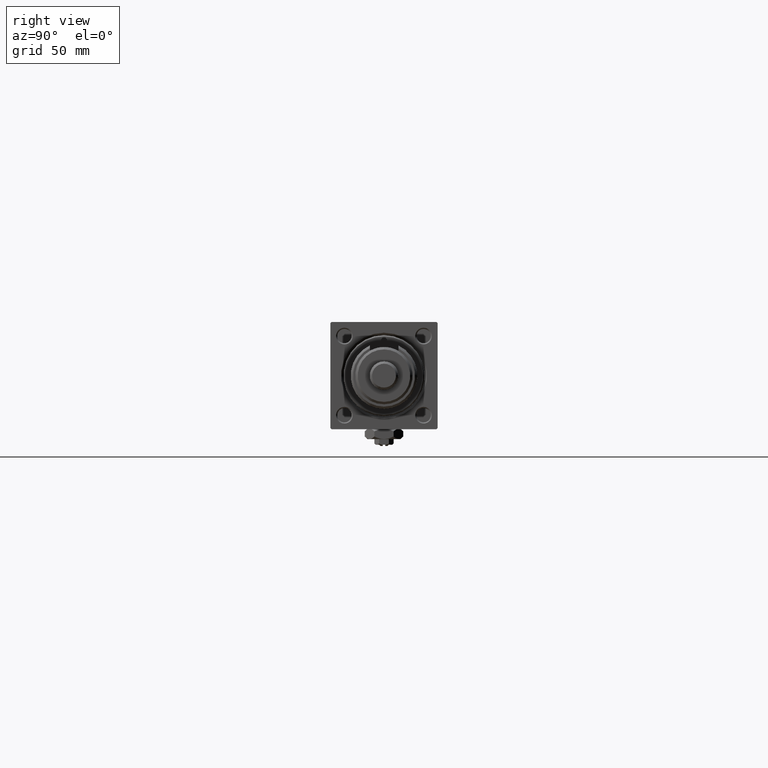
[diagram: clean part render]
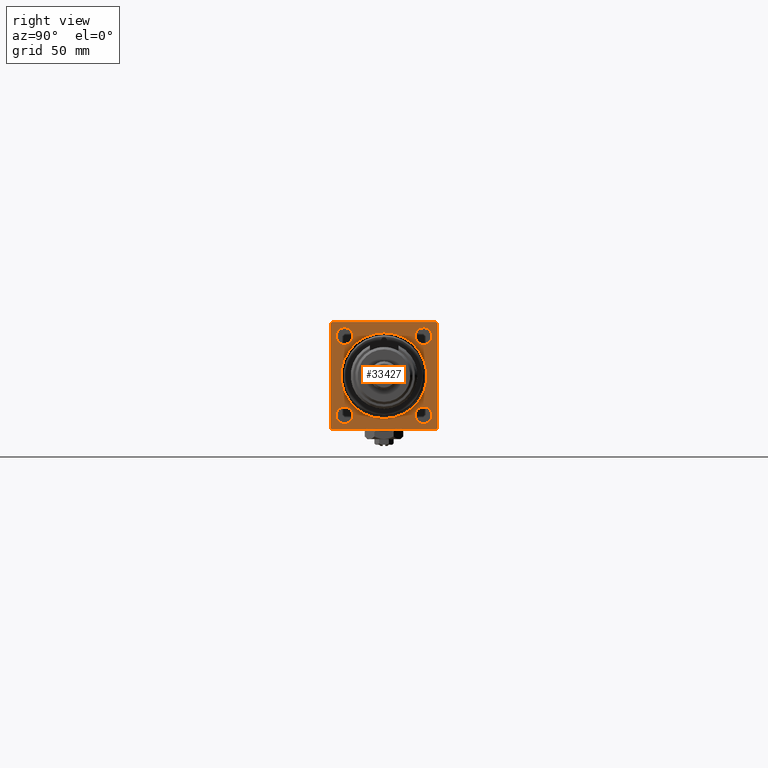
[diagram: same view with one face highlighted and labeled with its STEP entity id]
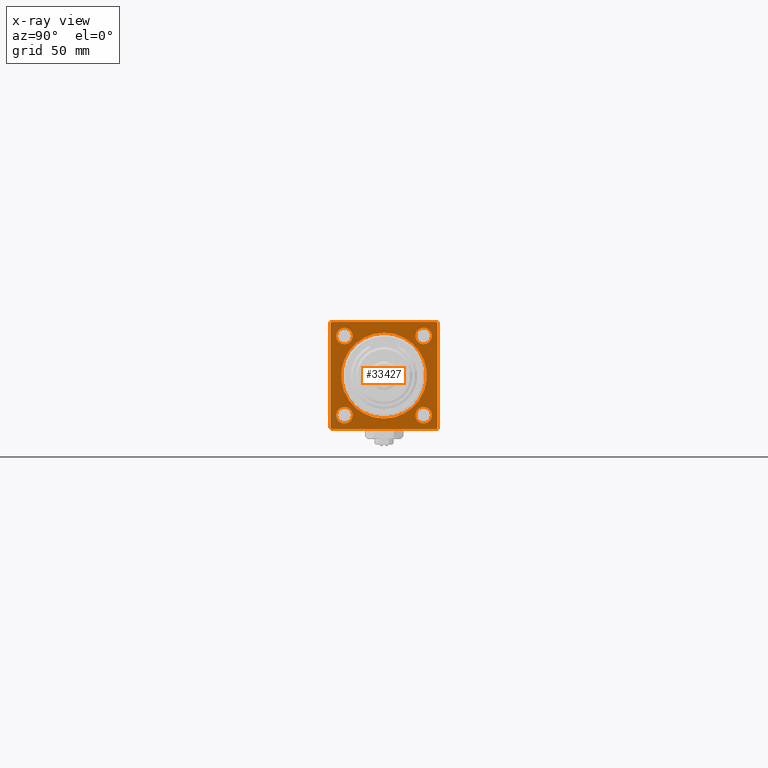
[diagram: x-ray of the same camera — body ghosted, the highlighted face saturated]
A machine part, right view. The second image highlights one B-rep face of the part: STEP entity #33427.
The next image is the same camera in x-ray: the body ghosted, the highlighted face saturated — about 0% of this face is hidden behind the body in this view.
In plain terms, the highlighted planar face has unit normal (-1, 0, 0).
Its self-contained STEP definition (entity closure, byte-faithful):
#32 = FACE_BOUND ( 'NONE', #52836, .T. ) ;
#244 = DIRECTION ( 'NONE',  ( 0.000000000000000000, 0.000000000000000000, 1.000000000000000000 ) ) ;
#536 = ORIENTED_EDGE ( 'NONE', *, *, #18818, .F. ) ;
#588 = EDGE_CURVE ( 'NONE', #1087, #30330, #25429, .T. ) ;
#929 = DIRECTION ( 'NONE',  ( -1.000000000000000000, 0.000000000000000000, -0.000000000000000000 ) ) ;
#1087 = VERTEX_POINT ( 'NONE', #15531 ) ;
#1211 = DIRECTION ( 'NONE',  ( -1.000000000000000000, 0.000000000000000000, -0.000000000000000000 ) ) ;
#2204 = CIRCLE ( 'NONE', #13790, 3.500000000000003109 ) ;
#2228 = DIRECTION ( 'NONE',  ( 0.000000000000000000, 0.000000000000000000, 1.000000000000000000 ) ) ;
#2502 = VECTOR ( 'NONE', #46861, 1000.000000000000000 ) ;
#2720 = ORIENTED_EDGE ( 'NONE', *, *, #34140, .T. ) ;
#2809 = EDGE_CURVE ( 'NONE', #55098, #14936, #36609, .T. ) ;
#3008 = VERTEX_POINT ( 'NONE', #4896 ) ;
#3711 = CIRCLE ( 'NONE', #21520, 17.99999999999998934 ) ;
#3977 = EDGE_LOOP ( 'NONE', ( #54972, #21694 ) ) ;
#4224 = CARTESIAN_POINT ( 'NONE',  ( 203.0000000000000000, 0.000000000000000000, 0.000000000000000000 ) ) ;
#4543 = AXIS2_PLACEMENT_3D ( 'NONE', #21865, #929, #18489 ) ;
#4786 = ORIENTED_EDGE ( 'NONE', *, *, #40006, .T. ) ;
#4896 = CARTESIAN_POINT ( 'NONE',  ( 203.0000000000000000, -16.60000000000000497, -20.10000000000000853 ) ) ;
#5281 = EDGE_LOOP ( 'NONE', ( #20588, #38647 ) ) ;
#5312 = PLANE ( 'NONE',  #6018 ) ;
#5344 = CARTESIAN_POINT ( 'NONE',  ( 203.0000000000000000, -16.60000000000000497, -16.60000000000000497 ) ) ;
#6018 = AXIS2_PLACEMENT_3D ( 'NONE', #4224, #26523, #43515 ) ;
#6551 = DIRECTION ( 'NONE',  ( 0.000000000000000000, -0.7071067811865474617, 0.7071067811865474617 ) ) ;
#7129 = ORIENTED_EDGE ( 'NONE', *, *, #46877, .F. ) ;
#7187 = VERTEX_POINT ( 'NONE', #53770 ) ;
#7711 = CIRCLE ( 'NONE', #19262, 3.500000000000003109 ) ;
#9224 = FACE_BOUND ( 'NONE', #25414, .T. ) ;
#9262 = VERTEX_POINT ( 'NONE', #51112 ) ;
#9483 = FACE_BOUND ( 'NONE', #5281, .T. ) ;
#9903 = CARTESIAN_POINT ( 'NONE',  ( 203.0000000000000000, 22.00000000000000355, 22.50000000000000355 ) ) ;
#10967 = DIRECTION ( 'NONE',  ( 0.000000000000000000, 0.000000000000000000, 1.000000000000000000 ) ) ;
#11263 = AXIS2_PLACEMENT_3D ( 'NONE', #36263, #44075, #2228 ) ;
#11279 = DIRECTION ( 'NONE',  ( 0.000000000000000000, 0.000000000000000000, -1.000000000000000000 ) ) ;
#11350 = VERTEX_POINT ( 'NONE', #22747 ) ;
#11665 = ORIENTED_EDGE ( 'NONE', *, *, #588, .T. ) ;
#12094 = LINE ( 'NONE', #44761, #37359 ) ;
#12566 = AXIS2_PLACEMENT_3D ( 'NONE', #34319, #46343, #33502 ) ;
#12576 = EDGE_CURVE ( 'NONE', #46656, #3008, #2204, .T. ) ;
#13015 = LINE ( 'NONE', #44797, #24757 ) ;
#13074 = VECTOR ( 'NONE', #11279, 1000.000000000000000 ) ;
#13790 = AXIS2_PLACEMENT_3D ( 'NONE', #30525, #1211, #18776 ) ;
#14936 = VERTEX_POINT ( 'NONE', #43041 ) ;
#14953 = EDGE_CURVE ( 'NONE', #49607, #55086, #7711, .T. ) ;
#15207 = CIRCLE ( 'NONE', #30355, 17.99999999999998934 ) ;
#15249 = ORIENTED_EDGE ( 'NONE', *, *, #52200, .T. ) ;
#15531 = CARTESIAN_POINT ( 'NONE',  ( 203.0000000000000000, -22.49999999999999645, -21.99999999999995026 ) ) ;
#15742 = LINE ( 'NONE', #45031, #26513 ) ;
#15873 = VECTOR ( 'NONE', #21280, 1000.000000000000000 ) ;
#15956 = CIRCLE ( 'NONE', #42659, 3.499999999999975131 ) ;
#15977 = VERTEX_POINT ( 'NONE', #28536 ) ;
#17530 = CIRCLE ( 'NONE', #11263, 3.500000000000003109 ) ;
#17604 = FACE_BOUND ( 'NONE', #3977, .T. ) ;
#17795 = VERTEX_POINT ( 'NONE', #50951 ) ;
#18057 = EDGE_CURVE ( 'NONE', #11350, #9262, #15742, .T. ) ;
#18489 = DIRECTION ( 'NONE',  ( 0.000000000000000000, 0.000000000000000000, 1.000000000000000000 ) ) ;
#18776 = DIRECTION ( 'NONE',  ( 0.000000000000000000, 0.000000000000000000, 1.000000000000000000 ) ) ;
#18818 = EDGE_CURVE ( 'NONE', #15977, #9262, #19678, .T. ) ;
#18871 = DIRECTION ( 'NONE',  ( 0.000000000000000000, -1.000000000000000000, -2.312964634635742957E-16 ) ) ;
#19008 = CARTESIAN_POINT ( 'NONE',  ( 203.0000000000000000, -16.60000000000000497, -13.10000000000000142 ) ) ;
#19262 = AXIS2_PLACEMENT_3D ( 'NONE', #44699, #31601, #48603 ) ;
#19678 = LINE ( 'NONE', #53705, #13074 ) ;
#19684 = DIRECTION ( 'NONE',  ( 0.000000000000000000, 0.000000000000000000, 1.000000000000000000 ) ) ;
#19779 = CIRCLE ( 'NONE', #21448, 3.500000000000003109 ) ;
#20292 = ORIENTED_EDGE ( 'NONE', *, *, #53635, .T. ) ;
#20588 = ORIENTED_EDGE ( 'NONE', *, *, #52897, .T. ) ;
#21280 = DIRECTION ( 'NONE',  ( 0.000000000000000000, 0.000000000000000000, -1.000000000000000000 ) ) ;
#21448 = AXIS2_PLACEMENT_3D ( 'NONE', #5344, #39100, #38829 ) ;
#21520 = AXIS2_PLACEMENT_3D ( 'NONE', #36690, #49506, #19684 ) ;
#21694 = ORIENTED_EDGE ( 'NONE', *, *, #2809, .T. ) ;
#21865 = CARTESIAN_POINT ( 'NONE',  ( 203.0000000000000000, 16.59999999999999787, -16.60000000000000497 ) ) ;
#22286 = VECTOR ( 'NONE', #38247, 1000.000000000000000 ) ;
#22747 = CARTESIAN_POINT ( 'NONE',  ( 203.0000000000000000, 22.00000000000000355, -22.49999999999999645 ) ) ;
#22785 = ORIENTED_EDGE ( 'NONE', *, *, #30269, .T. ) ;
#23120 = ORIENTED_EDGE ( 'NONE', *, *, #35624, .T. ) ;
#23197 = CARTESIAN_POINT ( 'NONE',  ( 203.0000000000000000, -21.99999999999995381, -22.50000000000000000 ) ) ;
#23261 = EDGE_LOOP ( 'NONE', ( #22785, #28785 ) ) ;
#23688 = DIRECTION ( 'NONE',  ( -0.000000000000000000, -0.7071067811865474617, -0.7071067811865474617 ) ) ;
#23793 = EDGE_CURVE ( 'NONE', #14936, #55098, #15956, .T. ) ;
#24757 = VECTOR ( 'NONE', #18871, 1000.000000000000000 ) ;
#25414 = EDGE_LOOP ( 'NONE', ( #4786, #27270 ) ) ;
#25429 = LINE ( 'NONE', #42408, #22286 ) ;
#26513 = VECTOR ( 'NONE', #28593, 1000.000000000000114 ) ;
#26523 = DIRECTION ( 'NONE',  ( -1.000000000000000000, 0.000000000000000000, -0.000000000000000000 ) ) ;
#26922 = DIRECTION ( 'NONE',  ( -1.000000000000000000, 0.000000000000000000, -0.000000000000000000 ) ) ;
#27270 = ORIENTED_EDGE ( 'NONE', *, *, #42135, .T. ) ;
#27880 = CARTESIAN_POINT ( 'NONE',  ( 203.0000000000000000, -22.49999999999999645, 21.99999999999999289 ) ) ;
#28067 = VERTEX_POINT ( 'NONE', #32114 ) ;
#28536 = CARTESIAN_POINT ( 'NONE',  ( 203.0000000000000000, 22.50000000000000355, 22.00000000000000355 ) ) ;
#28593 = DIRECTION ( 'NONE',  ( -0.000000000000000000, 0.7071067811865474617, 0.7071067811865474617 ) ) ;
#28785 = ORIENTED_EDGE ( 'NONE', *, *, #12576, .T. ) ;
#29190 = CARTESIAN_POINT ( 'NONE',  ( 203.0000000000000000, -22.49999999999999645, 21.99999999999999289 ) ) ;
#30269 = EDGE_CURVE ( 'NONE', #3008, #46656, #19779, .T. ) ;
#30330 = VERTEX_POINT ( 'NONE', #23197 ) ;
#30355 = AXIS2_PLACEMENT_3D ( 'NONE', #51558, #46830, #244 ) ;
#30525 = CARTESIAN_POINT ( 'NONE',  ( 203.0000000000000000, -16.60000000000000497, -16.60000000000000497 ) ) ;
#30608 = ORIENTED_EDGE ( 'NONE', *, *, #41521, .T. ) ;
#31601 = DIRECTION ( 'NONE',  ( -1.000000000000000000, 0.000000000000000000, -0.000000000000000000 ) ) ;
#32114 = CARTESIAN_POINT ( 'NONE',  ( 203.0000000000000000, 16.59999999999999787, 13.10000000000000142 ) ) ;
#32873 = VECTOR ( 'NONE', #23688, 1000.000000000000114 ) ;
#33427 = ADVANCED_FACE ( 'NONE', ( #9224, #17604, #47703, #9483, #32, #34610 ), #5312, .F. ) ;
#33502 = DIRECTION ( 'NONE',  ( 0.000000000000000000, 0.000000000000000000, 1.000000000000000000 ) ) ;
#33691 = VERTEX_POINT ( 'NONE', #29190 ) ;
#34132 = CARTESIAN_POINT ( 'NONE',  ( 203.0000000000000000, 16.59999999999999787, -13.10000000000000142 ) ) ;
#34140 = EDGE_CURVE ( 'NONE', #33691, #1087, #54189, .T. ) ;
#34319 = CARTESIAN_POINT ( 'NONE',  ( 203.0000000000000000, -16.59999999999999787, 16.59999999999999787 ) ) ;
#34610 = FACE_OUTER_BOUND ( 'NONE', #40859, .T. ) ;
#35624 = EDGE_CURVE ( 'NONE', #41863, #33691, #53524, .T. ) ;
#36263 = CARTESIAN_POINT ( 'NONE',  ( 203.0000000000000000, 16.59999999999999787, 16.60000000000000497 ) ) ;
#36609 = CIRCLE ( 'NONE', #12566, 3.499999999999975131 ) ;
#36690 = CARTESIAN_POINT ( 'NONE',  ( 203.0000000000000000, 0.000000000000000000, 0.000000000000000000 ) ) ;
#36961 = CARTESIAN_POINT ( 'NONE',  ( 203.0000000000000000, 2.204364238465234244E-15, 17.99999999999998934 ) ) ;
#37359 = VECTOR ( 'NONE', #6551, 1000.000000000000114 ) ;
#37513 = CIRCLE ( 'NONE', #4543, 3.500000000000003109 ) ;
#38005 = CARTESIAN_POINT ( 'NONE',  ( 203.0000000000000000, -22.49999999999999645, 22.49999999999999289 ) ) ;
#38247 = DIRECTION ( 'NONE',  ( 0.000000000000000000, 0.7071067811865426878, -0.7071067811865524577 ) ) ;
#38647 = ORIENTED_EDGE ( 'NONE', *, *, #14953, .T. ) ;
#38829 = DIRECTION ( 'NONE',  ( 0.000000000000000000, 0.000000000000000000, 1.000000000000000000 ) ) ;
#39100 = DIRECTION ( 'NONE',  ( -1.000000000000000000, 0.000000000000000000, -0.000000000000000000 ) ) ;
#39613 = CARTESIAN_POINT ( 'NONE',  ( 203.0000000000000000, -16.59999999999999787, 20.09999999999997300 ) ) ;
#39877 = CARTESIAN_POINT ( 'NONE',  ( 203.0000000000000000, 16.59999999999999787, -20.10000000000000853 ) ) ;
#40006 = EDGE_CURVE ( 'NONE', #28067, #17795, #17530, .T. ) ;
#40859 = EDGE_LOOP ( 'NONE', ( #2720, #11665, #7129, #54473, #536, #49015, #30608, #23120 ) ) ;
#41521 = EDGE_CURVE ( 'NONE', #52456, #41863, #13015, .T. ) ;
#41863 = VERTEX_POINT ( 'NONE', #42257 ) ;
#42135 = EDGE_CURVE ( 'NONE', #17795, #28067, #50547, .T. ) ;
#42257 = CARTESIAN_POINT ( 'NONE',  ( 203.0000000000000000, -21.99999999999998224, 22.49999999999999289 ) ) ;
#42408 = CARTESIAN_POINT ( 'NONE',  ( 203.0000000000000000, -21.99999999999996803, -22.50000000000000000 ) ) ;
#42659 = AXIS2_PLACEMENT_3D ( 'NONE', #44178, #26922, #48643 ) ;
#43041 = CARTESIAN_POINT ( 'NONE',  ( 203.0000000000000000, -16.59999999999999787, 13.10000000000002096 ) ) ;
#43515 = DIRECTION ( 'NONE',  ( -0.000000000000000000, 0.000000000000000000, 1.000000000000000000 ) ) ;
#44075 = DIRECTION ( 'NONE',  ( -1.000000000000000000, 0.000000000000000000, -0.000000000000000000 ) ) ;
#44178 = CARTESIAN_POINT ( 'NONE',  ( 203.0000000000000000, -16.59999999999999787, 16.59999999999999787 ) ) ;
#44699 = CARTESIAN_POINT ( 'NONE',  ( 203.0000000000000000, 16.59999999999999787, -16.60000000000000497 ) ) ;
#44761 = CARTESIAN_POINT ( 'NONE',  ( 203.0000000000000000, 22.00000000000000355, 22.50000000000000355 ) ) ;
#44797 = CARTESIAN_POINT ( 'NONE',  ( 203.0000000000000000, 22.50000000000000355, 22.50000000000000355 ) ) ;
#45031 = CARTESIAN_POINT ( 'NONE',  ( 203.0000000000000000, 22.50000000000000355, -21.99999999999999645 ) ) ;
#45382 = VERTEX_POINT ( 'NONE', #36961 ) ;
#46343 = DIRECTION ( 'NONE',  ( -1.000000000000000000, 0.000000000000000000, -0.000000000000000000 ) ) ;
#46656 = VERTEX_POINT ( 'NONE', #19008 ) ;
#46830 = DIRECTION ( 'NONE',  ( -1.000000000000000000, 0.000000000000000000, -0.000000000000000000 ) ) ;
#46861 = DIRECTION ( 'NONE',  ( 0.000000000000000000, -1.000000000000000000, -7.709882115452476934E-17 ) ) ;
#46877 = EDGE_CURVE ( 'NONE', #11350, #30330, #51056, .T. ) ;
#46991 = AXIS2_PLACEMENT_3D ( 'NONE', #53922, #53379, #10967 ) ;
#47703 = FACE_BOUND ( 'NONE', #23261, .T. ) ;
#48603 = DIRECTION ( 'NONE',  ( 0.000000000000000000, 0.000000000000000000, 1.000000000000000000 ) ) ;
#48643 = DIRECTION ( 'NONE',  ( 0.000000000000000000, 0.000000000000000000, 1.000000000000000000 ) ) ;
#49015 = ORIENTED_EDGE ( 'NONE', *, *, #49493, .T. ) ;
#49493 = EDGE_CURVE ( 'NONE', #15977, #52456, #12094, .T. ) ;
#49506 = DIRECTION ( 'NONE',  ( -1.000000000000000000, 0.000000000000000000, -0.000000000000000000 ) ) ;
#49607 = VERTEX_POINT ( 'NONE', #34132 ) ;
#50503 = CARTESIAN_POINT ( 'NONE',  ( 203.0000000000000000, 22.50000000000000355, -22.49999999999999645 ) ) ;
#50547 = CIRCLE ( 'NONE', #46991, 3.500000000000003109 ) ;
#50951 = CARTESIAN_POINT ( 'NONE',  ( 203.0000000000000000, 16.59999999999999787, 20.10000000000000853 ) ) ;
#51056 = LINE ( 'NONE', #50503, #2502 ) ;
#51112 = CARTESIAN_POINT ( 'NONE',  ( 203.0000000000000000, 22.50000000000000355, -21.99999999999998224 ) ) ;
#51558 = CARTESIAN_POINT ( 'NONE',  ( 203.0000000000000000, 0.000000000000000000, 0.000000000000000000 ) ) ;
#52200 = EDGE_CURVE ( 'NONE', #7187, #45382, #15207, .T. ) ;
#52456 = VERTEX_POINT ( 'NONE', #9903 ) ;
#52836 = EDGE_LOOP ( 'NONE', ( #15249, #20292 ) ) ;
#52897 = EDGE_CURVE ( 'NONE', #55086, #49607, #37513, .T. ) ;
#53379 = DIRECTION ( 'NONE',  ( -1.000000000000000000, 0.000000000000000000, -0.000000000000000000 ) ) ;
#53524 = LINE ( 'NONE', #27880, #32873 ) ;
#53635 = EDGE_CURVE ( 'NONE', #45382, #7187, #3711, .T. ) ;
#53705 = CARTESIAN_POINT ( 'NONE',  ( 203.0000000000000000, 22.50000000000000355, 22.50000000000000355 ) ) ;
#53770 = CARTESIAN_POINT ( 'NONE',  ( 203.0000000000000000, 0.000000000000000000, -17.99999999999998934 ) ) ;
#53922 = CARTESIAN_POINT ( 'NONE',  ( 203.0000000000000000, 16.59999999999999787, 16.60000000000000497 ) ) ;
#54189 = LINE ( 'NONE', #38005, #15873 ) ;
#54473 = ORIENTED_EDGE ( 'NONE', *, *, #18057, .T. ) ;
#54972 = ORIENTED_EDGE ( 'NONE', *, *, #23793, .T. ) ;
#55086 = VERTEX_POINT ( 'NONE', #39877 ) ;
#55098 = VERTEX_POINT ( 'NONE', #39613 ) ;